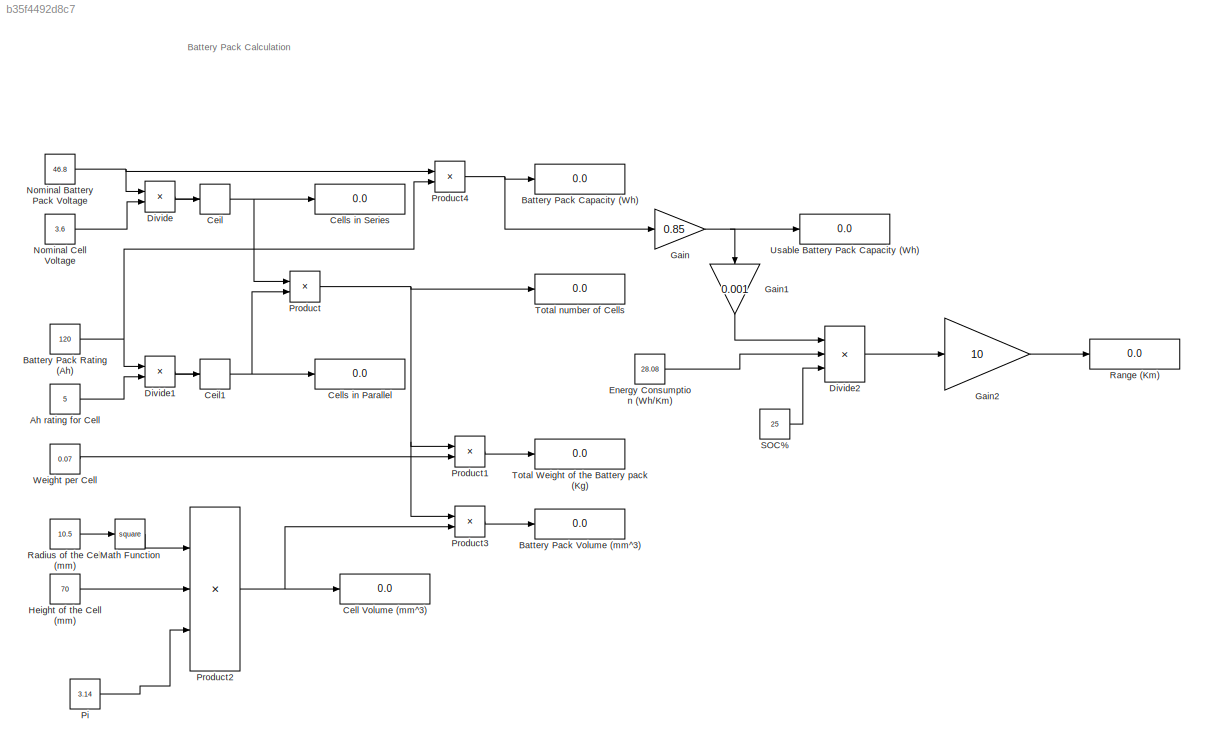
MODEL slx_b35f4492d8c7
KIND model
CONFIG AbsTol = auto
CONFIG EnableMultiTasking = off
CONFIG FixedStep = auto
CONFIG MaxStep = auto
CONFIG MinStep = auto
CONFIG RelTol = 1e-3
CONFIG SampleTimeConstraint = Unconstrained
CONFIG SolverName = VariableStepAuto
CONFIG StartTime = 0.0
CONFIG StopTime = 10.0
BLOCK [Constant] Ah rating for Cell 
  Value = 5
BLOCK [Display] Battery Pack Capacity (Wh)
  Decimation = 1
BLOCK [Constant] Battery Pack Rating (Ah)
  Value = 120
BLOCK [Display] Battery Pack Volume (mm^3)
  Decimation = 1
BLOCK [Rounding] Ceil
  Operator = ceil
BLOCK [Rounding] Ceil1
  Operator = ceil
BLOCK [Display] Cell Volume (mm^3)
  Decimation = 1
BLOCK [Display] Cells in Parallel
  Decimation = 1
BLOCK [Display] Cells in Series
  Decimation = 1
BLOCK [Product] Divide
  Inputs = */
BLOCK [Product] Divide1
  Inputs = */
BLOCK [Product] Divide2
  Inputs = */*
BLOCK [Constant] Energy Consumption (Wh//Km)
  Value = 28.08
BLOCK [Gain] Gain
  Gain = 0.85
BLOCK [Gain] Gain1
  Gain = 0.001
  NameLocation = left
BLOCK [Gain] Gain2
  Gain = 10
BLOCK [Constant] Height of the Cell (mm)
  Value = 70
BLOCK [Math] Math Function
  Operator = square
BLOCK [Constant] Nominal Battery Pack Voltage
  Value = 46.8
BLOCK [Constant] Nominal Cell Voltage
  Value = 3.6
BLOCK [Constant] Pi
  OutDataTypeStr = Inherit: Inherit via back propagation
  Value = 3.14
BLOCK [Product] Product
BLOCK [Product] Product1
BLOCK [Product] Product2
  Inputs = 3
BLOCK [Product] Product3
BLOCK [Product] Product4
BLOCK [Constant] Radius of the Cell (mm)
  Value = 10.5
BLOCK [Display] Range (Km)
  Decimation = 1
BLOCK [Constant] SOC%
  Value = 25
BLOCK [Display] Total Weight of the Battery pack (Kg)
  Decimation = 1
BLOCK [Display] Total number of Cells
  Decimation = 1
BLOCK [Display] Usable Battery Pack Capacity (Wh)
  Decimation = 1
BLOCK [Constant] Weight per Cell
  Value = 0.07
ANNOTATION (root): Battery Pack Calculation
LINE Ah rating for Cell :1 -> Divide1:2
NET Battery Pack Rating (Ah):1 -> Divide1:1, Product4:2
NET Ceil1:1 -> Cells in Parallel:1, Product:2
NET Ceil:1 -> Cells in Series:1, Product:1
LINE Divide1:1 -> Ceil1:1
LINE Divide2:1 -> Gain2:1
LINE Divide:1 -> Ceil:1
LINE Energy Consumption (Wh//Km):1 -> Divide2:2
LINE Gain1:1 -> Divide2:1
LINE Gain2:1 -> Range (Km):1
NET Gain:1 -> Gain1:1, Usable Battery Pack Capacity (Wh):1
LINE Height of the Cell (mm):1 -> Product2:2
LINE Math Function:1 -> Product2:1
NET Nominal Battery Pack Voltage:1 -> Divide:1, Product4:1
LINE Nominal Cell Voltage:1 -> Divide:2
LINE Pi:1 -> Product2:3
LINE Product1:1 -> Total Weight of the Battery pack (Kg):1
NET Product2:1 -> Cell Volume (mm^3):1, Product3:2
LINE Product3:1 -> Battery Pack Volume (mm^3):1
NET Product4:1 -> Battery Pack Capacity (Wh):1, Gain:1
NET Product:1 -> Product1:1, Product3:1, Total number of Cells:1
LINE Radius of the Cell (mm):1 -> Math Function:1
LINE SOC%:1 -> Divide2:3
LINE Weight per Cell:1 -> Product1:2
note: NET lines group one-source signal fan-out (src -> all destinations, sorted); 1:1 wires keep LINE
